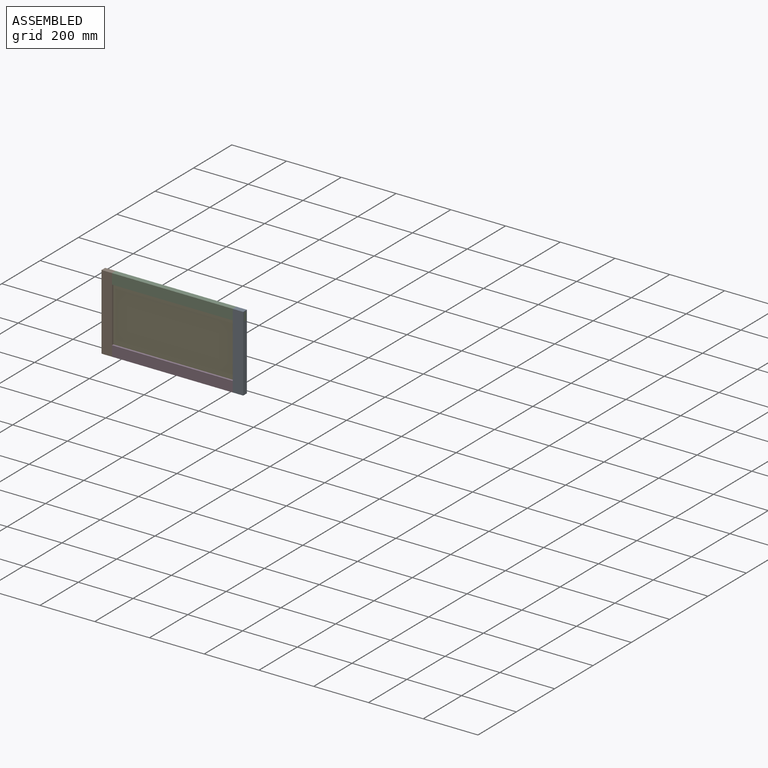
[diagram: assembled view]
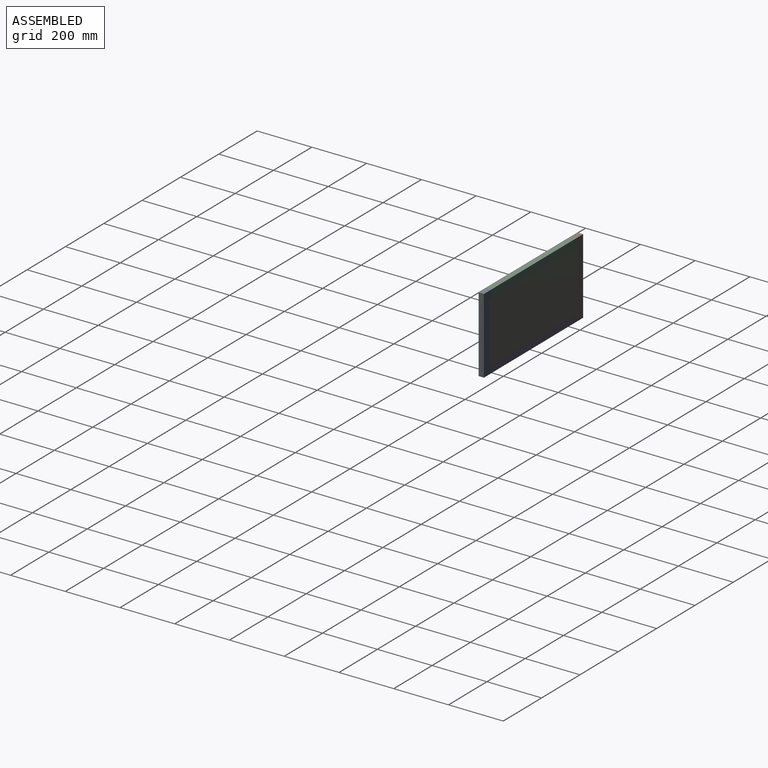
[diagram: assembled view, second angle]
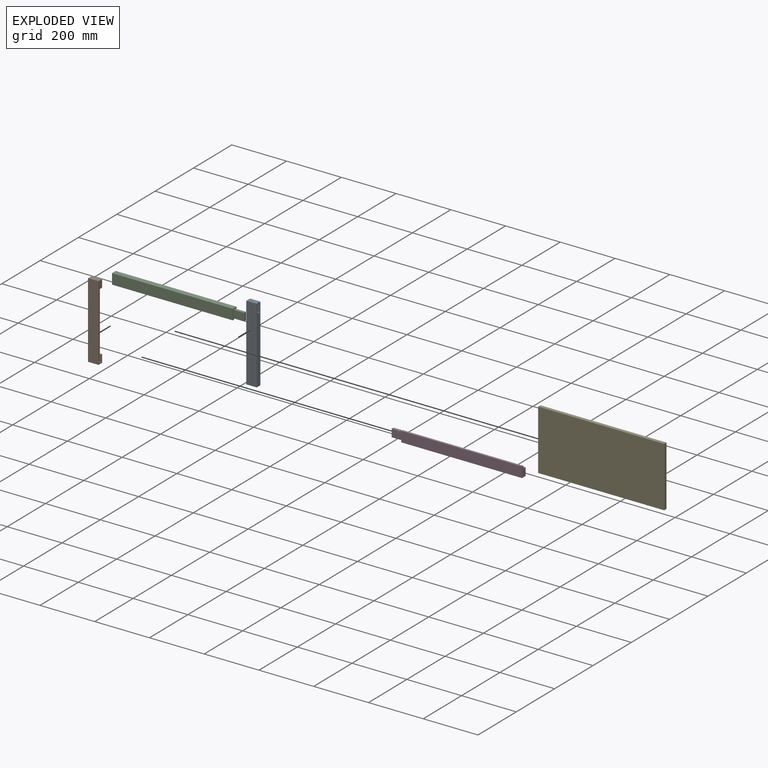
[diagram: exploded view]
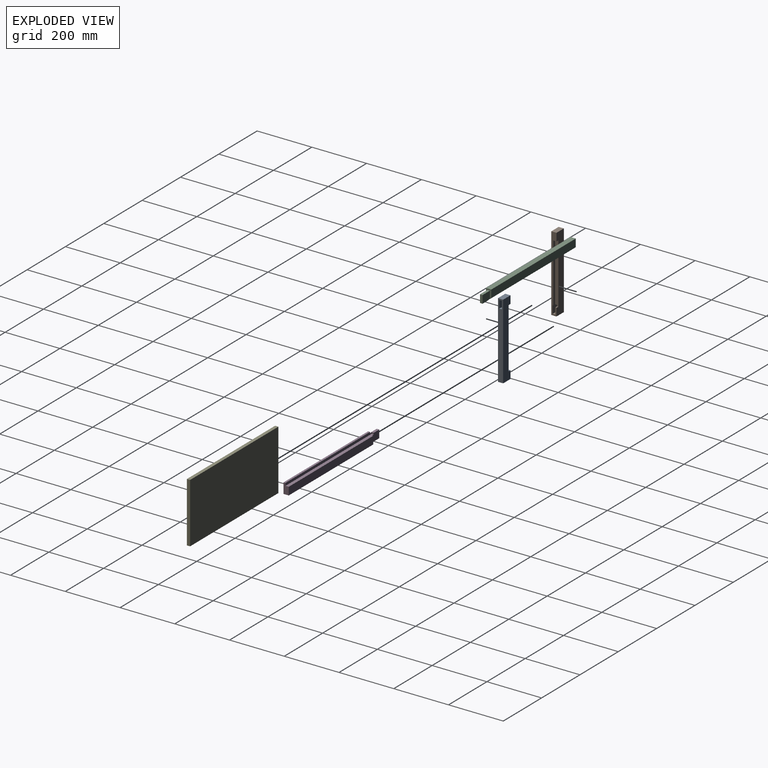
[diagram: exploded view, second angle]
ASSEMBLY  parts=5 mates=12
PART A: 14 faces, bbox 38.1x19.1x276.2 mm
  f0: plane 38.1x19.05mm, normal (0,0,1), area 725.8mm2, adj f1,f3,f4,f5
  f1: plane 276.23x19.05mm, normal (-1,0,0), area 4989.9mm2, adj f0,f2,f4,f5,f6,f7,f8,f9
  f2: plane 38.1x19.05mm, normal (0,0,-1), area 725.8mm2, adj f1,f3,f4,f5
  f3: plane 276.23x19.05mm, normal (1,0,0), area 2415.6mm2, adj f0,f2,f4,f5,f6,f7,f8,f9
  f4: plane 276.23x38.1mm, normal (0,1,0), area 8437.5mm2, adj f0,f1,f2,f3,f11,f12,f13
  f5: plane 276.23x38.1mm, normal (0,-1,0), area 10524.2mm2, adj f0,f1,f2,f3
  f6: plane 38.1x28.58mm, normal (0,1,0), area 1088.7mm2, adj f1,f3,f8,f9
  f7: plane 38.1x28.58mm, normal (0,-1,0), area 1043.3mm2, adj f1,f3,f8,f9,f11,f12
  f8: plane 38.1x9.53mm, normal (0,0,1), area 362.9mm2, adj f1,f3,f6,f7
  f9: plane 38.1x9.53mm, normal (0,0,-1), area 294.9mm2, adj f1,f3,f6,f7,f10,f12
  f10: plane 214.31x9.53mm, normal (0,1,0), area 2041.3mm2, adj f3,f9,f12,f13
  f11: plane 9.53x4.76mm, normal (0,0,1), area 45.4mm2, adj f3,f4,f7,f12
  f12: plane 219.08x11.91mm, normal (1,0,0), area 2574.3mm2, adj f4,f7,f9,f10,f11,f13
  f13: plane 11.91x9.53mm, normal (0,0,-1), area 113.4mm2, adj f3,f4,f10,f12
PART B: same geometry as A
PART C: 14 faces, bbox 479.4x19.1x38.1 mm
  f0: plane 441.33x7.14mm, normal (0,0,1), area 3152.7mm2, adj f1,f2,f5,f13
  f1: plane 38.1x19.05mm, normal (-1,0,0), area 374.2mm2, adj f0,f3,f4,f5,f7,f8,f9,f10
  f2: plane 38.1x19.05mm, normal (1,0,0), area 612.4mm2, adj f0,f3,f4,f5,f11,f13
  f3: plane 441.33x19.05mm, normal (0,0,-1), area 8407.2mm2, adj f1,f2,f4,f5
  f4: plane 441.33x28.58mm, normal (0,1,0), area 12610.9mm2, adj f1,f2,f3,f11
  f5: plane 441.33x38.1mm, normal (0,-1,0), area 16814.5mm2, adj f0,f1,f2,f3
  f6: plane 28.58x9.53mm, normal (-1,0,0), area 272.2mm2, adj f7,f8,f9,f10
  f7: plane 38.1x28.58mm, normal (0,-1,0), area 1088.7mm2, adj f1,f6,f9,f10
  f8: plane 38.1x28.58mm, normal (0,1,0), area 1043.3mm2, adj f1,f6,f9,f10,f11,f12
  f9: plane 38.1x9.53mm, normal (0,0,-1), area 362.9mm2, adj f1,f6,f7,f8
  f10: plane 38.1x9.53mm, normal (0,0,1), area 294.9mm2, adj f1,f6,f7,f8,f12,f13
  f11: plane 450.85x11.91mm, normal (0,0,1), area 5322.6mm2, adj f1,f2,f4,f8,f12,f13
  f12: plane 7.14x4.76mm, normal (1,0,0), area 34mm2, adj f8,f10,f11,f13
  f13: plane 450.85x9.53mm, normal (0,1,0), area 4249mm2, adj f0,f1,f2,f10,f11,f12
PART D: same geometry as C
PART E: 6 faces, bbox 460.4x11.9x219.1 mm
  f0: plane 219.08x11.91mm, normal (1,0,0), area 2608.4mm2, adj f1,f3,f4,f5
  f1: plane 460.38x11.91mm, normal (0,0,-1), area 5481.3mm2, adj f0,f2,f4,f5
  f2: plane 219.08x11.91mm, normal (-1,0,0), area 2608.4mm2, adj f1,f3,f4,f5
  f3: plane 460.38x11.91mm, normal (0,0,1), area 5481.3mm2, adj f0,f2,f4,f5
  f4: plane 460.38x219.08mm, normal (0,-1,0), area 100856.7mm2, adj f0,f1,f2,f3
  f5: plane 460.38x219.08mm, normal (0,1,0), area 100856.7mm2, adj f0,f1,f2,f3
PLACE A rot(axis=(0,1,0),180deg) t=(411.22,-50.07,181.54)mm
PLACE B t=(-414.28,-50.07,-174.06)mm
PLACE C rot(axis=(0,1,0),180deg) t=(411.22,-50.07,181.54)mm
PLACE D t=(-414.28,-50.07,-174.06)mm
PLACE E t=(-414.28,-50.07,-174.06)mm fixed
MATE planar B.f3 <-> D.f1  axis (1,0,0) through (-222.2,-44.11,-101.03)mm
MATE planar B.f5 <-> D.f5  axis (0,-1,0) through (-241.25,-50.07,3.74)mm
MATE planar B.f2 <-> D.f3  axis (0,0,-1) through (-241.25,-40.54,-134.37)mm
MATE planar B.f12 <-> E.f2  axis (1,0,0) through (-231.72,-36.94,5.16)mm
MATE planar E.f0 <-> A.f12  axis (1,0,0) through (228.65,-36.97,3.74)mm
MATE planar C.f5 <-> B.f5  axis (0,-1,0) through (-1.53,-50.07,122.81)mm
MATE planar C.f11 <-> E.f3  axis (0,0,-1) through (1.35,-37,113.28)mm
MATE planar A.f5 <-> C.f5  axis (0,-1,0) through (257.23,-50.07,3.74)mm
MATE planar A.f0 <-> D.f3  axis (0,0,-1) through (238.18,-40.54,-134.37)mm
MATE planar C.f2 <-> B.f3  axis (-1,0,0) through (-222.2,-41.2,125.45)mm
MATE planar E.f1 <-> D.f11  axis (0,0,-1) through (-1.53,-36.97,-105.79)mm
MATE planar E.f4 <-> D.f13  axis (0,-1,0) through (-1.53,-42.92,3.74)mm
